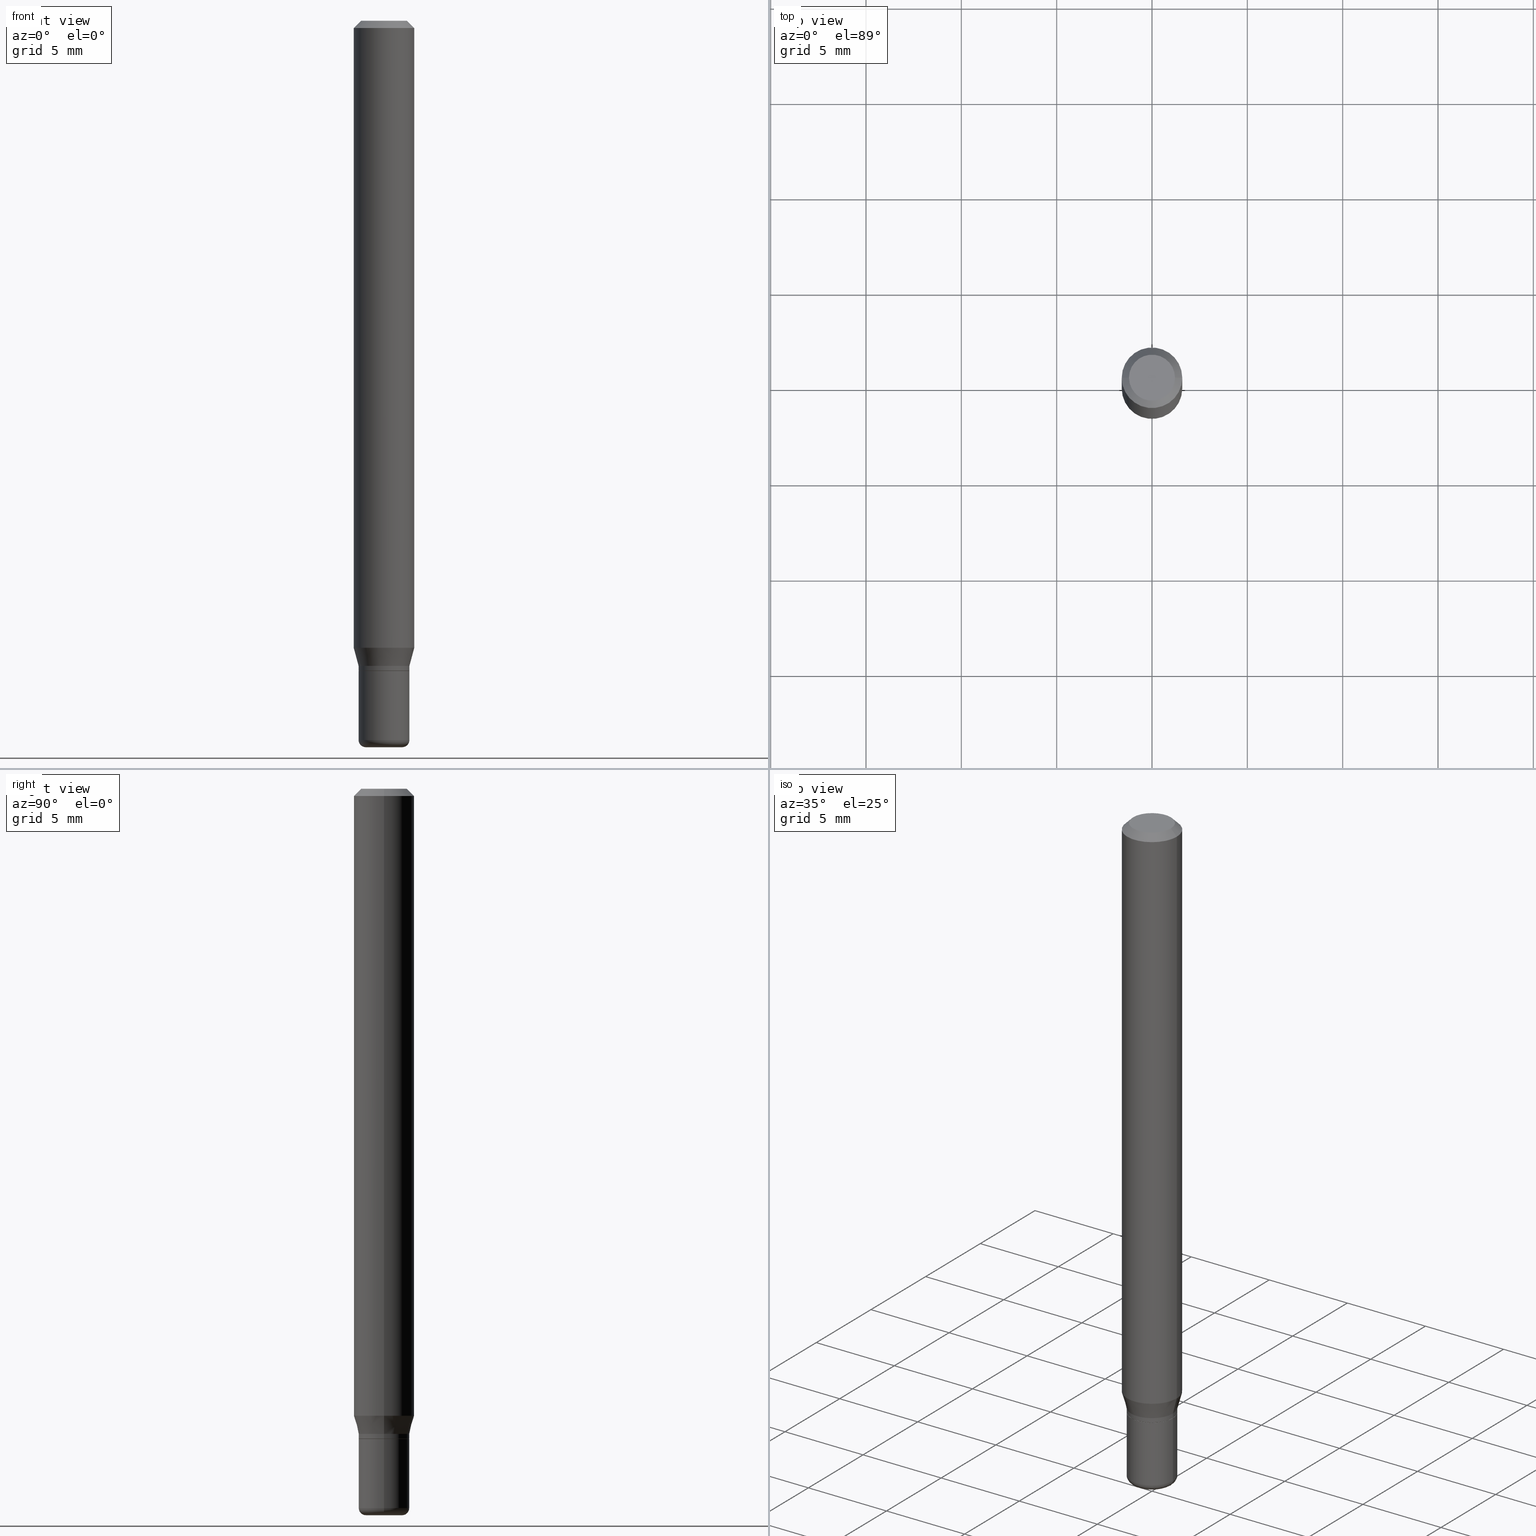
[diagram: canonical four-view strip — front | top / right | iso, engineering-drawing reading convention]
A machine part, canonical four-view strip (front | top / right | iso — engineering-drawing reading convention). The complete STEP part file that produces these views, byte-faithful:
ISO-10303-21;
HEADER;
FILE_DESCRIPTION (( 'STEP AP203' ),
    '1' );
FILE_NAME ('08746.STEP',
    '2024-02-29T20:46:26',
    ( '' ),
    ( '' ),
    'SwSTEP 2.0',
    'SolidWorks 2023',
    '' );
FILE_SCHEMA (( 'CONFIG_CONTROL_DESIGN' ));
ENDSEC;

DATA;
#1 = DIRECTION ( 'NONE',  ( -2.445468806185136597E-29, 3.491481338843145583E-15, 1.000000000000000000 ) ) ;
#2 = DIMENSIONAL_EXPONENTS ( 1.000000000000000000, 0.000000000000000000, 0.000000000000000000, 0.000000000000000000, 0.000000000000000000, 0.000000000000000000, 0.000000000000000000 ) ;
#3 = DIRECTION ( 'NONE',  ( -2.445468806185136877E-29, 3.491481338843145188E-15, 1.000000000000000000 ) ) ;
#4 = EDGE_CURVE ( 'NONE', #268, #75, #420, .T. ) ;
#5 = AXIS2_PLACEMENT_3D ( 'NONE', #154, #232, #308 ) ;
#6 = CARTESIAN_POINT ( 'NONE',  ( 0.06250000000000000000, -4.888073874380378612E-16, -0.01499999999999970281 ) ) ;
#7 = CIRCLE ( 'NONE', #45, 0.05249999999999997724 ) ;
#8 = DIRECTION ( 'NONE',  ( -2.445468806185136597E-29, 3.491481338843145583E-15, 1.000000000000000000 ) ) ;
#9 = CARTESIAN_POINT ( 'NONE',  ( 3.257364449838602072E-29, -4.650653143339070101E-15, -1.332000000000000073 ) ) ;
#10 = EDGE_CURVE ( 'NONE', #423, #398, #405, .T. ) ;
#11 = CARTESIAN_POINT ( 'NONE',  ( 0.05249999999999999806, -5.053919237975452413E-15, -1.342500000000000249 ) ) ;
#12 = VECTOR ( 'NONE', #3, 39.37007874015748143 ) ;
#13 = PERSON_AND_ORGANIZATION ( #141, #319 ) ;
#14 = LINE ( 'NONE', #246, #409 ) ;
#15 = DATE_AND_TIME ( #374, #93 ) ;
#16 = ORIENTED_EDGE ( 'NONE', *, *, #133, .T. ) ;
#17 = ORIENTED_EDGE ( 'NONE', *, *, #307, .F. ) ;
#18 = FACE_OUTER_BOUND ( 'NONE', #338, .T. ) ;
#19 = AXIS2_PLACEMENT_3D ( 'NONE', #292, #216, #211 ) ;
#20 = FACE_OUTER_BOUND ( 'NONE', #123, .T. ) ;
#21 = PLANE ( 'NONE',  #363 ) ;
#22 = EDGE_CURVE ( 'NONE', #223, #476, #80, .T. ) ;
#23 = CARTESIAN_POINT ( 'NONE',  ( -0.05249999999999999806, 3.730349362740525838E-16, -2.582440922383825311E-30 ) ) ;
#24 = ORIENTED_EDGE ( 'NONE', *, *, #266, .F. ) ;
#25 = CARTESIAN_POINT ( 'NONE',  ( 0.05249999999999997724, -5.551455328760600652E-15, -1.485000000000000098 ) ) ;
#26 = AXIS2_PLACEMENT_3D ( 'NONE', #53, #345, #506 ) ;
#27 = VERTEX_POINT ( 'NONE', #318 ) ;
#28 = DIRECTION ( 'NONE',  ( 1.000000000000000000, -6.982962677686269866E-15, 0.000000000000000000 ) ) ;
#29 = ORIENTED_EDGE ( 'NONE', *, *, #85, .T. ) ;
#30 = CARTESIAN_POINT ( 'NONE',  ( -0.05249999999999999806, -4.563046806515444838E-15, -1.342500000000000249 ) ) ;
#31 = EDGE_LOOP ( 'NONE', ( #503, #191 ) ) ;
#32 = DIRECTION ( 'NONE',  ( -2.445468806185136597E-29, 3.491481338843145583E-15, 1.000000000000000000 ) ) ;
#33 = CONICAL_SURFACE ( 'NONE', #452, 0.05199999999999998374, 0.7853981633972775267 ) ;
#34 = APPROVAL_PERSON_ORGANIZATION ( #220, #161, #496 ) ;
#35 = ORIENTED_EDGE ( 'NONE', *, *, #41, .F. ) ;
#36 =( GEOMETRIC_REPRESENTATION_CONTEXT ( 3 ) GLOBAL_UNCERTAINTY_ASSIGNED_CONTEXT ( ( #208 ) ) GLOBAL_UNIT_ASSIGNED_CONTEXT ( ( #260, #135, #128 ) ) REPRESENTATION_CONTEXT ( 'NONE', 'WORKASPACE' ) );
#37 = EDGE_CURVE ( 'NONE', #62, #27, #167, .T. ) ;
#38 = DIRECTION ( 'NONE',  ( -2.445468806185136877E-29, 3.491481338843145188E-15, 1.000000000000000000 ) ) ;
#39 = CARTESIAN_POINT ( 'NONE',  ( 3.631521177184928138E-29, -5.184849788182071492E-15, -1.485000000000000098 ) ) ;
#40 = LINE ( 'NONE', #361, #12 ) ;
#41 = EDGE_CURVE ( 'NONE', #27, #62, #276, .T. ) ;
#42 = DIRECTION ( 'NONE',  ( -2.445468806185136877E-29, 3.491481338843145188E-15, 1.000000000000000000 ) ) ;
#43 = DIRECTION ( 'NONE',  ( -2.445468806185136597E-29, 3.491481338843145583E-15, 1.000000000000000000 ) ) ;
#44 = DIRECTION ( 'NONE',  ( 1.000000000000000000, -6.982962677686260400E-15, 0.000000000000000000 ) ) ;
#45 = AXIS2_PLACEMENT_3D ( 'NONE', #39, #48, #242 ) ;
#46 = EDGE_CURVE ( 'NONE', #109, #423, #445, .T. ) ;
#47 = ORIENTED_EDGE ( 'NONE', *, *, #282, .T. ) ;
#48 = DIRECTION ( 'NONE',  ( -2.445468806185136597E-29, 3.491481338843145583E-15, 1.000000000000000000 ) ) ;
#49 = DIRECTION ( 'NONE',  ( -2.445468806185136597E-29, 3.491481338843145583E-15, 1.000000000000000000 ) ) ;
#50 = DESIGN_CONTEXT ( 'detailed design', #438, 'design' ) ;
#51 = DIRECTION ( 'NONE',  ( 1.000000000000000000, -6.982962677686266711E-15, 4.876176775795935793E-29 ) ) ;
#52 = AXIS2_PLACEMENT_3D ( 'NONE', #368, #367, #244 ) ;
#53 = CARTESIAN_POINT ( 'NONE',  ( 0.000000000000000000, 0.000000000000000000, 0.000000000000000000 ) ) ;
#54 = DIRECTION ( 'NONE',  ( 2.438088387897960049E-29, -3.491481338843145188E-15, -1.000000000000000000 ) ) ;
#55 = DIRECTION ( 'NONE',  ( -0.7071067811865479058, 2.468850131082261005E-15, -0.7071067811865471286 ) ) ;
#56 = ADVANCED_FACE ( 'NONE', ( #442 ), #113, .T. ) ;
#57 = ORIENTED_EDGE ( 'NONE', *, *, #317, .F. ) ;
#58 = AXIS2_PLACEMENT_3D ( 'NONE', #226, #73, #424 ) ;
#59 = CC_DESIGN_SECURITY_CLASSIFICATION ( #144, ( #112 ) ) ;
#60 = CLOSED_SHELL ( 'NONE', ( #467, #376, #251, #474, #417, #192, #188, #287, #280, #434, #462, #326 ) ) ;
#61 = DIRECTION ( 'NONE',  ( -2.445468806185136597E-29, 3.491481338843145583E-15, 1.000000000000000000 ) ) ;
#62 = VERTEX_POINT ( 'NONE', #235 ) ;
#63 = DIRECTION ( 'NONE',  ( -1.000000000000000000, 7.105427357600997914E-15, 0.000000000000000000 ) ) ;
#64 = ORIENTED_EDGE ( 'NONE', *, *, #130, .F. ) ;
#65 = FACE_OUTER_BOUND ( 'NONE', #151, .T. ) ;
#66 = APPLICATION_PROTOCOL_DEFINITION ( 'international standard', 'config_control_design', 1994, #438 ) ;
#67 = ORIENTED_EDGE ( 'NONE', *, *, #365, .T. ) ;
#68 = CARTESIAN_POINT ( 'NONE',  ( 0.05199999999999998374, -5.050427756636608617E-15, -1.342500000000000249 ) ) ;
#69 = AXIS2_PLACEMENT_3D ( 'NONE', #177, #501, #140 ) ;
#70 = EDGE_CURVE ( 'NONE', #402, #106, #7, .T. ) ;
#71 = PERSON_AND_ORGANIZATION ( #141, #319 ) ;
#72 = VERTEX_POINT ( 'NONE', #11 ) ;
#73 = DIRECTION ( 'NONE',  ( -2.445468806185136597E-29, 3.491481338843145583E-15, 1.000000000000000000 ) ) ;
#74 = COORDINATED_UNIVERSAL_TIME_OFFSET ( 5, 0, .BEHIND. ) ;
#75 = VERTEX_POINT ( 'NONE', #6 ) ;
#76 = CARTESIAN_POINT ( 'NONE',  ( -0.05199999999999998374, -4.317831474801671617E-15, -1.342500000000000249 ) ) ;
#77 = ORIENTED_EDGE ( 'NONE', *, *, #394, .F. ) ;
#78 = FACE_OUTER_BOUND ( 'NONE', #451, .T. ) ;
#79 = CIRCLE ( 'NONE', #256, 0.05249999999999999806 ) ;
#80 = CIRCLE ( 'NONE', #472, 0.05199999999999998374 ) ;
#81 = ORIENTED_EDGE ( 'NONE', *, *, #184, .T. ) ;
#82 = PRODUCT_RELATED_PRODUCT_CATEGORY ( 'detail', '', ( #187 ) ) ;
#83 = VERTEX_POINT ( 'NONE', #162 ) ;
#84 = CARTESIAN_POINT ( 'NONE',  ( 3.631521177184928138E-29, -5.184849788182071492E-15, -1.485000000000000098 ) ) ;
#85 = EDGE_CURVE ( 'NONE', #62, #75, #125, .T. ) ;
#86 = AXIS2_PLACEMENT_3D ( 'NONE', #136, #418, #500 ) ;
#87 = ORIENTED_EDGE ( 'NONE', *, *, #70, .F. ) ;
#88 = AXIS2_PLACEMENT_3D ( 'NONE', #255, #61, #453 ) ;
#89 = ORIENTED_EDGE ( 'NONE', *, *, #4, .F. ) ;
#90 = PERSON_AND_ORGANIZATION ( #141, #319 ) ;
#91 = DIRECTION ( 'NONE',  ( 2.445468806185136597E-29, -3.491481338843145583E-15, -1.000000000000000000 ) ) ;
#92 = DIRECTION ( 'NONE',  ( -0.2588190451025213501, 5.211531920934551042E-15, 0.9659258262890682012 ) ) ;
#93 = LOCAL_TIME ( 15, 46, 26.00000000000000000, #168 ) ;
#94 = CALENDAR_DATE ( 2024, 29, 2 ) ;
#95 = CC_DESIGN_PERSON_AND_ORGANIZATION_ASSIGNMENT ( #267, #475, ( #112 ) ) ;
#96 = CARTESIAN_POINT ( 'NONE',  ( -0.06250000000000000000, -1.842271543109589479E-15, -0.01499999999999970281 ) ) ;
#97 = EDGE_CURVE ( 'NONE', #398, #83, #364, .T. ) ;
#98 = DIRECTION ( 'NONE',  ( -2.445468806185136597E-29, 3.491481338843145583E-15, 1.000000000000000000 ) ) ;
#99 = ORIENTED_EDGE ( 'NONE', *, *, #46, .F. ) ;
#100 = CC_DESIGN_PERSON_AND_ORGANIZATION_ASSIGNMENT ( #90, #245, ( #357 ) ) ;
#101 = LINE ( 'NONE', #213, #334 ) ;
#102 = ORIENTED_EDGE ( 'NONE', *, *, #317, .T. ) ;
#103 = AXIS2_PLACEMENT_3D ( 'NONE', #272, #228, #117 ) ;
#104 = AXIS2_PLACEMENT_3D ( 'NONE', #454, #98, #253 ) ;
#105 = APPROVAL_ROLE ( '' ) ;
#106 = VERTEX_POINT ( 'NONE', #443 ) ;
#107 = CARTESIAN_POINT ( 'NONE',  ( 3.283041872303546419E-29, -4.687313697396923253E-15, -1.342500000000000249 ) ) ;
#108 = CARTESIAN_POINT ( 'NONE',  ( 3.283041872303546419E-29, -4.687313697396923253E-15, -1.342500000000000249 ) ) ;
#109 = VERTEX_POINT ( 'NONE', #411 ) ;
#110 = ORIENTED_EDGE ( 'NONE', *, *, #440, .T. ) ;
#111 = CARTESIAN_POINT ( 'NONE',  ( 0.000000000000000000, 0.000000000000000000, 0.000000000000000000 ) ) ;
#112 = PRODUCT_DEFINITION_FORMATION_WITH_SPECIFIED_SOURCE ( 'ANY', '', #187, .NOT_KNOWN. ) ;
#113 = TOROIDAL_SURFACE ( 'NONE', #121, 0.03749999999999999167, 0.01499999999999998557 ) ;
#114 = ORIENTED_EDGE ( 'NONE', *, *, #502, .F. ) ;
#115 = DIRECTION ( 'NONE',  ( 1.000000000000000000, -6.982962677686260400E-15, 0.000000000000000000 ) ) ;
#116 = ORIENTED_EDGE ( 'NONE', *, *, #174, .F. ) ;
#117 = DIRECTION ( 'NONE',  ( 1.000000000000000000, -6.982962677686266711E-15, 0.000000000000000000 ) ) ;
#118 = APPROVAL_DATE_TIME ( #146, #161 ) ;
#119 = DIRECTION ( 'NONE',  ( 1.000000000000000000, -6.982962677686267499E-15, 4.876176775795935793E-29 ) ) ;
#120 = ORIENTED_EDGE ( 'NONE', *, *, #201, .F. ) ;
#121 = AXIS2_PLACEMENT_3D ( 'NONE', #84, #362, #437 ) ;
#122 = CARTESIAN_POINT ( 'NONE',  ( 3.166098311508524908E-29, -4.520349285836658294E-15, -1.294679491924311421 ) ) ;
#123 = EDGE_LOOP ( 'NONE', ( #77, #158, #395, #89 ) ) ;
#124 = CC_DESIGN_DATE_AND_TIME_ASSIGNMENT ( #277, #404, ( #144 ) ) ;
#125 = LINE ( 'NONE', #360, #515 ) ;
#126 = AXIS2_PLACEMENT_3D ( 'NONE', #219, #54, #173 ) ;
#127 = ORIENTED_EDGE ( 'NONE', *, *, #510, .F. ) ;
#128 =( NAMED_UNIT ( * ) SI_UNIT ( $, .STERADIAN. ) SOLID_ANGLE_UNIT ( ) );
#129 = VECTOR ( 'NONE', #290, 39.37007874015748143 ) ;
#130 = EDGE_CURVE ( 'NONE', #423, #109, #457, .T. ) ;
#131 = DIRECTION ( 'NONE',  ( 1.000000000000000000, -6.982962677686260400E-15, 0.000000000000000000 ) ) ;
#132 = COORDINATED_UNIVERSAL_TIME_OFFSET ( 5, 0, .BEHIND. ) ;
#133 = EDGE_CURVE ( 'NONE', #109, #83, #488, .T. ) ;
#134 = CARTESIAN_POINT ( 'NONE',  ( 0.05249999999999999806, -3.666055405785289629E-16, 2.559992807292866011E-30 ) ) ;
#135 =( NAMED_UNIT ( * ) PLANE_ANGLE_UNIT ( ) SI_UNIT ( $, .RADIAN. ) );
#136 = CARTESIAN_POINT ( 'NONE',  ( 0.03749999999999999167, -5.446710888595306494E-15, -1.485000000000000098 ) ) ;
#137 = LOCAL_TIME ( 15, 46, 26.00000000000000000, #74 ) ;
#138 = CARTESIAN_POINT ( 'NONE',  ( 3.668203209277632395E-31, -5.237222008264614861E-17, -0.01499999999999970281 ) ) ;
#139 = APPROVAL ( #270, 'UNSPECIFIED' ) ;
#140 = DIRECTION ( 'NONE',  ( -1.000000000000000000, 6.982962677686266711E-15, 0.000000000000000000 ) ) ;
#141 = PERSON ( 'UNSPECIFIED', 'UNSPECIFIED', 'UNSPECIFIED', ('UNSPECIFIED'), ('UNSPECIFIED'), ('UNSPECIFIED') ) ;
#142 = PERSON_AND_ORGANIZATION_ROLE ( 'design_owner' ) ;
#143 = AXIS2_PLACEMENT_3D ( 'NONE', #313, #390, #28 ) ;
#144 = SECURITY_CLASSIFICATION ( '', '', #517 ) ;
#145 = DIRECTION ( 'NONE',  ( 1.000000000000000000, -6.982962677686265922E-15, 4.876176775795935793E-29 ) ) ;
#146 = DATE_AND_TIME ( #340, #470 ) ;
#147 = ORIENTED_EDGE ( 'NONE', *, *, #487, .T. ) ;
#148 = DIRECTION ( 'NONE',  ( 1.000000000000000000, -6.982962677686268288E-15, 0.000000000000000000 ) ) ;
#149 = ORIENTED_EDGE ( 'NONE', *, *, #297, .F. ) ;
#150 = DIRECTION ( 'NONE',  ( -2.438088387897960049E-29, 3.491481338843145188E-15, 1.000000000000000000 ) ) ;
#151 = EDGE_LOOP ( 'NONE', ( #480, #301, #435, #264 ) ) ;
#152 = AXIS2_PLACEMENT_3D ( 'NONE', #481, #283, #410 ) ;
#153 = ADVANCED_FACE ( 'NONE', ( #333 ), #499, .T. ) ;
#154 = CARTESIAN_POINT ( 'NONE',  ( 3.582686580359766038E-29, -5.359686688179453325E-15, -1.500000000000000222 ) ) ;
#155 = ORIENTED_EDGE ( 'NONE', *, *, #37, .F. ) ;
#156 = CARTESIAN_POINT ( 'NONE',  ( 0.06250000000000000000, -4.956784453192050752E-15, -1.294679491924311421 ) ) ;
#157 = CALENDAR_DATE ( 2024, 29, 2 ) ;
#158 = ORIENTED_EDGE ( 'NONE', *, *, #307, .T. ) ;
#159 = ORIENTED_EDGE ( 'NONE', *, *, #10, .F. ) ;
#160 = CIRCLE ( 'NONE', #294, 0.03749999999999999861 ) ;
#161 = APPROVAL ( #332, 'UNSPECIFIED' ) ;
#162 = CARTESIAN_POINT ( 'NONE',  ( -0.06250000000000000000, -4.076260075986595677E-15, -1.294679491924311421 ) ) ;
#163 = CARTESIAN_POINT ( 'NONE',  ( 3.166098311508524908E-29, -4.520349285836658294E-15, -1.294679491924311421 ) ) ;
#164 = DIRECTION ( 'NONE',  ( -2.445468806185136597E-29, 3.491481338843145583E-15, 1.000000000000000000 ) ) ;
#165 = AXIS2_PLACEMENT_3D ( 'NONE', #122, #441, #199 ) ;
#166 = DIRECTION ( 'NONE',  ( 1.000000000000000000, -6.982962677686271444E-15, 4.883557194083114583E-29 ) ) ;
#167 = CIRCLE ( 'NONE', #225, 0.04750000000000000749 ) ;
#168 = COORDINATED_UNIVERSAL_TIME_OFFSET ( 5, 0, .BEHIND. ) ;
#169 = APPROVAL ( #456, 'UNSPECIFIED' ) ;
#170 = DATE_TIME_ROLE ( 'creation_date' ) ;
#171 = DIRECTION ( 'NONE',  ( -1.000000000000000000, 6.982962677686266711E-15, 0.000000000000000000 ) ) ;
#172 = AXIS2_PLACEMENT_3D ( 'NONE', #422, #250, #63 ) ;
#173 = DIRECTION ( 'NONE',  ( -1.000000000000000000, 6.982962677686265922E-15, -4.876176775795935793E-29 ) ) ;
#174 = EDGE_CURVE ( 'NONE', #398, #75, #14, .T. ) ;
#175 = ORIENTED_EDGE ( 'NONE', *, *, #440, .F. ) ;
#176 = AXIS2_PLACEMENT_3D ( 'NONE', #455, #377, #51 ) ;
#177 = CARTESIAN_POINT ( 'NONE',  ( 3.668203209277632395E-31, -5.237222008264614861E-17, -0.01499999999999970281 ) ) ;
#178 = LINE ( 'NONE', #23, #240 ) ;
#179 = COORDINATED_UNIVERSAL_TIME_OFFSET ( 5, 0, .BEHIND. ) ;
#180 = ORIENTED_EDGE ( 'NONE', *, *, #41, .T. ) ;
#181 = AXIS2_PLACEMENT_3D ( 'NONE', #138, #91, #171 ) ;
#182 = AXIS2_PLACEMENT_3D ( 'NONE', #9, #164, #327 ) ;
#183 = DIRECTION ( 'NONE',  ( -2.445468806185136597E-29, 3.491481338843145583E-15, 1.000000000000000000 ) ) ;
#184 = EDGE_CURVE ( 'NONE', #27, #268, #101, .T. ) ;
#185 = ORIENTED_EDGE ( 'NONE', *, *, #365, .F. ) ;
#186 = FACE_OUTER_BOUND ( 'NONE', #466, .T. ) ;
#187 = PRODUCT ( '08746', '08746', '', ( #495 ) ) ;
#188 = ADVANCED_FACE ( 'NONE', ( #20 ), #295, .T. ) ;
#189 = ORIENTED_EDGE ( 'NONE', *, *, #243, .T. ) ;
#190 = FACE_OUTER_BOUND ( 'NONE', #353, .T. ) ;
#191 = ORIENTED_EDGE ( 'NONE', *, *, #201, .T. ) ;
#192 = ADVANCED_FACE ( 'NONE', ( #373 ), #310, .T. ) ;
#193 = CIRCLE ( 'NONE', #143, 0.05249999999999998418 ) ;
#194 = DIRECTION ( 'NONE',  ( -2.445468806185136597E-29, 3.491481338843145583E-15, 1.000000000000000000 ) ) ;
#195 = AXIS2_PLACEMENT_3D ( 'NONE', #259, #430, #234 ) ;
#196 = EDGE_LOOP ( 'NONE', ( #471, #384, #408, #17 ) ) ;
#197 = MANIFOLD_SOLID_BREP ( 'Body-Move/Copy2[1]', #212 ) ;
#198 = PERSON_AND_ORGANIZATION_ROLE ( 'classification_officer' ) ;
#199 = DIRECTION ( 'NONE',  ( 1.000000000000000000, -6.982962677686262766E-15, 0.000000000000000000 ) ) ;
#200 = DIRECTION ( 'NONE',  ( 0.2588190451025213501, 1.565188264969621968E-15, 0.9659258262890682012 ) ) ;
#201 = EDGE_CURVE ( 'NONE', #463, #72, #491, .T. ) ;
#202 = CYLINDRICAL_SURFACE ( 'NONE', #285, 0.05249999999999999806 ) ;
#203 = DIRECTION ( 'NONE',  ( 1.000000000000000000, -6.982962677686267499E-15, 0.000000000000000000 ) ) ;
#204 = CIRCLE ( 'NONE', #172, 0.01499999999999998557 ) ;
#205 = FACE_OUTER_BOUND ( 'NONE', #227, .T. ) ;
#206 = ORIENTED_EDGE ( 'NONE', *, *, #382, .T. ) ;
#207 = CARTESIAN_POINT ( 'NONE',  ( 3.257364449838602072E-29, -4.650653143339070101E-15, -1.332000000000000073 ) ) ;
#208 = UNCERTAINTY_MEASURE_WITH_UNIT (LENGTH_MEASURE( 1.000000000000000082E-05 ), #260, 'distance_accuracy_value', 'NONE');
#209 = CARTESIAN_POINT ( 'NONE',  ( 3.283041872303546419E-29, -4.687313697396923253E-15, -1.342500000000000249 ) ) ;
#210 = DIRECTION ( 'NONE',  ( 1.000000000000000000, -6.982962677686268288E-15, 0.000000000000000000 ) ) ;
#211 = DIRECTION ( 'NONE',  ( 1.000000000000000000, -6.982962677686268288E-15, 0.000000000000000000 ) ) ;
#212 = CLOSED_SHELL ( 'NONE', ( #56, #406, #493, #314, #153, #337 ) ) ;
#213 = CARTESIAN_POINT ( 'NONE',  ( -0.06250000000000000000, 3.840629472727455270E-16, -0.01499999999999970281 ) ) ;
#214 = VERTEX_POINT ( 'NONE', #330 ) ;
#215 = CC_DESIGN_PERSON_AND_ORGANIZATION_ASSIGNMENT ( #349, #198, ( #144 ) ) ;
#216 = DIRECTION ( 'NONE',  ( -2.445468806185136597E-29, 3.491481338843145583E-15, 1.000000000000000000 ) ) ;
#217 = EDGE_LOOP ( 'NONE', ( #127, #306, #189, #99 ) ) ;
#218 = AXIS2_PLACEMENT_3D ( 'NONE', #359, #324, #119 ) ;
#219 = CARTESIAN_POINT ( 'NONE',  ( 3.316907271900976589E-16, 0.04750000000000000749, -2.925296391183627249E-17 ) ) ;
#220 = PERSON_AND_ORGANIZATION ( #141, #319 ) ;
#221 = VERTEX_POINT ( 'NONE', #497 ) ;
#222 = CARTESIAN_POINT ( 'NONE',  ( 3.283041872303546419E-29, -4.687313697396923253E-15, -1.342500000000000249 ) ) ;
#223 = VERTEX_POINT ( 'NONE', #494 ) ;
#224 = CIRCLE ( 'NONE', #104, 0.05249999999999998418 ) ;
#225 = AXIS2_PLACEMENT_3D ( 'NONE', #486, #279, #366 ) ;
#226 = CARTESIAN_POINT ( 'NONE',  ( 3.257364449838602072E-29, -4.650653143339070101E-15, -1.332000000000000073 ) ) ;
#227 = EDGE_LOOP ( 'NONE', ( #233, #102, #428, #120 ) ) ;
#228 = DIRECTION ( 'NONE',  ( -2.445468806185136597E-29, 3.491481338843145583E-15, 1.000000000000000000 ) ) ;
#229 = DATE_AND_TIME ( #157, #137 ) ;
#230 = CC_DESIGN_PERSON_AND_ORGANIZATION_ASSIGNMENT ( #71, #478, ( #112 ) ) ;
#231 = ORIENTED_EDGE ( 'NONE', *, *, #510, .T. ) ;
#232 = DIRECTION ( 'NONE',  ( -2.438088387897960049E-29, 3.491481338843145188E-15, 1.000000000000000000 ) ) ;
#233 = ORIENTED_EDGE ( 'NONE', *, *, #487, .F. ) ;
#234 = DIRECTION ( 'NONE',  ( 1.000000000000000000, -6.982962677686267499E-15, 4.876176775795935793E-29 ) ) ;
#235 = CARTESIAN_POINT ( 'NONE',  ( 0.04750000000000000749, -4.035134999187568762E-16, 2.731847993664288856E-16 ) ) ;
#236 = DIRECTION ( 'NONE',  ( 1.000000000000000000, -6.982962677686266711E-15, 4.876176775795935793E-29 ) ) ;
#237 = ORIENTED_EDGE ( 'NONE', *, *, #282, .F. ) ;
#238 = CARTESIAN_POINT ( 'NONE',  ( 0.000000000000000000, 0.000000000000000000, 0.000000000000000000 ) ) ;
#239 = ORIENTED_EDGE ( 'NONE', *, *, #37, .T. ) ;
#240 = VECTOR ( 'NONE', #369, 39.37007874015748143 ) ;
#241 = EDGE_CURVE ( 'NONE', #476, #223, #381, .T. ) ;
#242 = DIRECTION ( 'NONE',  ( 1.000000000000000000, -6.982962677686270655E-15, 0.000000000000000000 ) ) ;
#243 = EDGE_CURVE ( 'NONE', #247, #423, #249, .T. ) ;
#244 = DIRECTION ( 'NONE',  ( 1.000000000000000000, -6.982962677686266711E-15, 4.852736867747365086E-29 ) ) ;
#245 = PERSON_AND_ORGANIZATION_ROLE ( 'creator' ) ;
#246 = CARTESIAN_POINT ( 'NONE',  ( 0.06250000000000000000, -4.364351673553916694E-16, 3.047610484872459871E-30 ) ) ;
#247 = VERTEX_POINT ( 'NONE', #336 ) ;
#248 = AXIS2_PLACEMENT_3D ( 'NONE', #222, #150, #145 ) ;
#249 = LINE ( 'NONE', #134, #129 ) ;
#250 = DIRECTION ( 'NONE',  ( 7.105427357601001859E-15, 1.000000000000000000, -3.491481338843145583E-15 ) ) ;
#251 = ADVANCED_FACE ( 'NONE', ( #18 ), #300, .T. ) ;
#252 = CARTESIAN_POINT ( 'NONE',  ( -0.03749999999999999861, -4.891291667131351044E-15, -1.500000000000000222 ) ) ;
#253 = DIRECTION ( 'NONE',  ( 1.000000000000000000, -6.982962677686269866E-15, 0.000000000000000000 ) ) ;
#254 = ADVANCED_BREP_SHAPE_REPRESENTATION ( '08746', ( #197, #372, #26 ), #36 ) ;
#255 = CARTESIAN_POINT ( 'NONE',  ( 3.257364449838602072E-29, -4.650653143339070101E-15, -1.332000000000000073 ) ) ;
#256 = AXIS2_PLACEMENT_3D ( 'NONE', #108, #49, #210 ) ;
#257 = APPROVAL_DATE_TIME ( #15, #169 ) ;
#258 = ORIENTED_EDGE ( 'NONE', *, *, #22, .T. ) ;
#259 = CARTESIAN_POINT ( 'NONE',  ( 0.000000000000000000, 0.000000000000000000, 0.000000000000000000 ) ) ;
#260 =( CONVERSION_BASED_UNIT ( 'INCH', #303 ) LENGTH_UNIT ( ) NAMED_UNIT ( #2 ) );
#261 = ORIENTED_EDGE ( 'NONE', *, *, #379, .F. ) ;
#262 = LINE ( 'NONE', #265, #400 ) ;
#263 = APPROVAL_ROLE ( '' ) ;
#264 = ORIENTED_EDGE ( 'NONE', *, *, #426, .F. ) ;
#265 = CARTESIAN_POINT ( 'NONE',  ( -0.06250000000000000000, 4.440892098500626162E-16, -3.074334431409316114E-30 ) ) ;
#266 = EDGE_CURVE ( 'NONE', #221, #402, #329, .T. ) ;
#267 = PERSON_AND_ORGANIZATION ( #141, #319 ) ;
#268 = VERTEX_POINT ( 'NONE', #96 ) ;
#269 = FACE_OUTER_BOUND ( 'NONE', #514, .T. ) ;
#270 = APPROVAL_STATUS ( 'not_yet_approved' ) ;
#271 = VERTEX_POINT ( 'NONE', #252 ) ;
#272 = CARTESIAN_POINT ( 'NONE',  ( 3.668203209277632395E-31, -5.237222008264614861E-17, -0.01499999999999970281 ) ) ;
#273 = SHAPE_DEFINITION_REPRESENTATION ( #358, #254 ) ;
#274 = DIRECTION ( 'NONE',  ( 1.000000000000000000, -6.982962677686266711E-15, 0.000000000000000000 ) ) ;
#275 = CC_DESIGN_APPROVAL ( #161, ( #112 ) ) ;
#276 = CIRCLE ( 'NONE', #52, 0.04750000000000000749 ) ;
#277 = DATE_AND_TIME ( #431, #320 ) ;
#278 = FACE_OUTER_BOUND ( 'NONE', #217, .T. ) ;
#279 = DIRECTION ( 'NONE',  ( -2.445468806185136597E-29, 3.491481338843145583E-15, 1.000000000000000000 ) ) ;
#280 = ADVANCED_FACE ( 'NONE', ( #416 ), #448, .F. ) ;
#281 = CARTESIAN_POINT ( 'NONE',  ( 3.668203209277632395E-31, -5.237222008264614861E-17, -0.01499999999999970281 ) ) ;
#282 = EDGE_CURVE ( 'NONE', #247, #214, #224, .T. ) ;
#283 = DIRECTION ( 'NONE',  ( -2.445468806185136597E-29, 3.491481338843145583E-15, 1.000000000000000000 ) ) ;
#284 = DIRECTION ( 'NONE',  ( 1.000000000000000000, -6.982962677686262766E-15, 0.000000000000000000 ) ) ;
#285 = AXIS2_PLACEMENT_3D ( 'NONE', #111, #355, #436 ) ;
#286 = APPROVAL_PERSON_ORGANIZATION ( #465, #139, #263 ) ;
#287 = ADVANCED_FACE ( 'NONE', ( #380 ), #341, .T. ) ;
#288 = AXIS2_PLACEMENT_3D ( 'NONE', #331, #450, #131 ) ;
#289 = CARTESIAN_POINT ( 'NONE',  ( -0.05250000000000000500, -4.277618207065018355E-15, -1.332000000000000073 ) ) ;
#290 = DIRECTION ( 'NONE',  ( -2.445468806185136877E-29, 3.491481338843145188E-15, 1.000000000000000000 ) ) ;
#291 = DATE_AND_TIME ( #94, #513 ) ;
#292 = CARTESIAN_POINT ( 'NONE',  ( 3.283041872303546419E-29, -4.687313697396923253E-15, -1.342500000000000249 ) ) ;
#293 = CARTESIAN_POINT ( 'NONE',  ( 3.666055405785617499E-16, 0.05249999999999530736, -1.342500000000000471 ) ) ;
#294 = AXIS2_PLACEMENT_3D ( 'NONE', #311, #194, #468 ) ;
#295 = CYLINDRICAL_SURFACE ( 'NONE', #176, 0.06250000000000000000 ) ;
#296 = DIRECTION ( 'NONE',  ( -2.445468806185136877E-29, 3.491481338843145188E-15, 1.000000000000000000 ) ) ;
#297 = EDGE_CURVE ( 'NONE', #402, #72, #479, .T. ) ;
#298 = CC_DESIGN_PERSON_AND_ORGANIZATION_ASSIGNMENT ( #13, #142, ( #187 ) ) ;
#299 = APPLICATION_PROTOCOL_DEFINITION ( 'international standard', 'config_control_design', 1994, #414 ) ;
#300 = CONICAL_SURFACE ( 'NONE', #181, 0.06250000000000000000, 0.7853981633974488341 ) ;
#301 = ORIENTED_EDGE ( 'NONE', *, *, #241, .T. ) ;
#302 = CARTESIAN_POINT ( 'NONE',  ( 0.05250000000000000500, -5.017258683917599261E-15, -1.332000000000000073 ) ) ;
#303 = LENGTH_MEASURE_WITH_UNIT ( LENGTH_MEASURE( 0.02539999999999999897 ), #388 );
#304 = ORIENTED_EDGE ( 'NONE', *, *, #458, .T. ) ;
#305 = DIRECTION ( 'NONE',  ( -2.445468806185136597E-29, 3.491481338843145583E-15, 1.000000000000000000 ) ) ;
#306 = ORIENTED_EDGE ( 'NONE', *, *, #426, .T. ) ;
#307 = EDGE_CURVE ( 'NONE', #83, #398, #512, .T. ) ;
#308 = DIRECTION ( 'NONE',  ( 1.000000000000000000, -6.982962677686265922E-15, 4.876176775795935793E-29 ) ) ;
#309 = EDGE_LOOP ( 'NONE', ( #258, #304, #237, #261 ) ) ;
#310 = CONICAL_SURFACE ( 'NONE', #88, 0.05250000000000000500, 0.2617993877991500740 ) ;
#311 = CARTESIAN_POINT ( 'NONE',  ( 3.668203209277704895E-29, -5.237222008264718177E-15, -1.500000000000000222 ) ) ;
#312 = ORIENTED_EDGE ( 'NONE', *, *, #243, .F. ) ;
#313 = CARTESIAN_POINT ( 'NONE',  ( 3.281819137900453057E-29, -4.685567956727500961E-15, -1.342000000000000082 ) ) ;
#314 = ADVANCED_FACE ( 'NONE', ( #205 ), #407, .T. ) ;
#315 = APPROVAL_DATE_TIME ( #229, #139 ) ;
#316 = ORIENTED_EDGE ( 'NONE', *, *, #22, .F. ) ;
#317 = EDGE_CURVE ( 'NONE', #106, #402, #413, .T. ) ;
#318 = CARTESIAN_POINT ( 'NONE',  ( -0.04750000000000000749, 3.578768372314221353E-16, 2.731847993664239060E-16 ) ) ;
#319 = ORGANIZATION ( 'UNSPECIFIED', 'UNSPECIFIED', '' ) ;
#320 = LOCAL_TIME ( 15, 46, 26.00000000000000000, #393 ) ;
#321 = CARTESIAN_POINT ( 'NONE',  ( 0.05249999999999998418, -3.666055405785289136E-16, 2.559992807292865661E-30 ) ) ;
#322 = DIRECTION ( 'NONE',  ( 0.7071067811865479058, -7.319954787623257623E-15, -0.7071067811865471286 ) ) ;
#323 = CYLINDRICAL_SURFACE ( 'NONE', #492, 0.06250000000000000000 ) ;
#324 = DIRECTION ( 'NONE',  ( -2.445468806185136597E-29, 3.491481338843145583E-15, 1.000000000000000000 ) ) ;
#325 = ORIENTED_EDGE ( 'NONE', *, *, #382, .F. ) ;
#326 = ADVANCED_FACE ( 'NONE', ( #278 ), #202, .T. ) ;
#327 = DIRECTION ( 'NONE',  ( 1.000000000000000000, -6.982962677686267499E-15, 0.000000000000000000 ) ) ;
#328 = CC_DESIGN_APPROVAL ( #169, ( #357 ) ) ;
#329 = CIRCLE ( 'NONE', #86, 0.01499999999999998557 ) ;
#330 = CARTESIAN_POINT ( 'NONE',  ( -0.05249999999999998418, -4.312533020453448426E-15, -1.342000000000000082 ) ) ;
#331 = CARTESIAN_POINT ( 'NONE',  ( 3.283041872303546419E-29, -4.687313697396923253E-15, -1.342500000000000249 ) ) ;
#332 = APPROVAL_STATUS ( 'not_yet_approved' ) ;
#333 = FACE_OUTER_BOUND ( 'NONE', #386, .T. ) ;
#334 = VECTOR ( 'NONE', #55, 39.37007874015748143 ) ;
#335 = EDGE_LOOP ( 'NONE', ( #518, #347, #175, #116 ) ) ;
#336 = CARTESIAN_POINT ( 'NONE',  ( 0.05249999999999998418, -5.052173497306030121E-15, -1.342000000000000082 ) ) ;
#337 = ADVANCED_FACE ( 'NONE', ( #78 ), #516, .F. ) ;
#338 = EDGE_LOOP ( 'NONE', ( #155, #29, #110, #375 ) ) ;
#339 = DIRECTION ( 'NONE',  ( -2.445468806185136597E-29, 3.491481338843145583E-15, 1.000000000000000000 ) ) ;
#340 = CALENDAR_DATE ( 2024, 29, 2 ) ;
#341 = CONICAL_SURFACE ( 'NONE', #69, 0.06250000000000000000, 0.7853981633974488341 ) ;
#342 = ORIENTED_EDGE ( 'NONE', *, *, #97, .F. ) ;
#343 = AXIS2_PLACEMENT_3D ( 'NONE', #207, #483, #203 ) ;
#344 = CYLINDRICAL_SURFACE ( 'NONE', #482, 0.05249999999999999806 ) ;
#345 = DIRECTION ( 'NONE',  ( 0.000000000000000000, 0.000000000000000000, 1.000000000000000000 ) ) ;
#346 = CC_DESIGN_DATE_AND_TIME_ASSIGNMENT ( #291, #170, ( #357 ) ) ;
#347 = ORIENTED_EDGE ( 'NONE', *, *, #394, .T. ) ;
#348 = FACE_OUTER_BOUND ( 'NONE', #309, .T. ) ;
#349 = PERSON_AND_ORGANIZATION ( #141, #319 ) ;
#350 = ORIENTED_EDGE ( 'NONE', *, *, #241, .F. ) ;
#351 = CARTESIAN_POINT ( 'NONE',  ( 0.000000000000000000, 0.000000000000000000, 0.000000000000000000 ) ) ;
#352 = AXIS2_PLACEMENT_3D ( 'NONE', #433, #32, #148 ) ;
#353 = EDGE_LOOP ( 'NONE', ( #47, #231, #64, #312 ) ) ;
#354 = AXIS2_PLACEMENT_3D ( 'NONE', #281, #1, #274 ) ;
#355 = DIRECTION ( 'NONE',  ( -2.445468806185136597E-29, 3.491481338843145583E-15, 1.000000000000000000 ) ) ;
#356 = EDGE_LOOP ( 'NONE', ( #206, #509, #87, #24 ) ) ;
#357 = PRODUCT_DEFINITION ( 'UNKNOWN', '', #112, #50 ) ;
#358 = PRODUCT_DEFINITION_SHAPE ( 'NONE', 'NONE',  #357 ) ;
#359 = CARTESIAN_POINT ( 'NONE',  ( 0.000000000000000000, 0.000000000000000000, 0.000000000000000000 ) ) ;
#360 = CARTESIAN_POINT ( 'NONE',  ( 0.06250000000000000000, -4.811533449433669144E-16, -0.01499999999999970281 ) ) ;
#361 = CARTESIAN_POINT ( 'NONE',  ( -0.05249999999999998418, 3.730349362740524852E-16, -2.582440922383824961E-30 ) ) ;
#362 = DIRECTION ( 'NONE',  ( -2.445468806185136597E-29, 3.491481338843145583E-15, 1.000000000000000000 ) ) ;
#363 = AXIS2_PLACEMENT_3D ( 'NONE', #293, #461, #385 ) ;
#364 = CIRCLE ( 'NONE', #415, 0.06250000000000000000 ) ;
#365 = EDGE_CURVE ( 'NONE', #271, #221, #370, .T. ) ;
#366 = DIRECTION ( 'NONE',  ( 1.000000000000000000, -6.982962677686266711E-15, 4.852736867747365086E-29 ) ) ;
#367 = DIRECTION ( 'NONE',  ( -2.445468806185136597E-29, 3.491481338843145583E-15, 1.000000000000000000 ) ) ;
#368 = CARTESIAN_POINT ( 'NONE',  ( -6.680649051745406845E-45, 9.538196290434862081E-31, 2.731847993664263218E-16 ) ) ;
#369 = DIRECTION ( 'NONE',  ( -2.445468806185136877E-29, 3.491481338843145188E-15, 1.000000000000000000 ) ) ;
#370 = CIRCLE ( 'NONE', #352, 0.03749999999999999861 ) ;
#371 = VECTOR ( 'NONE', #200, 39.37007874015747433 ) ;
#372 = MANIFOLD_SOLID_BREP ( 'Body-Move/Copy2[2]', #60 ) ;
#373 = FACE_OUTER_BOUND ( 'NONE', #196, .T. ) ;
#374 = CALENDAR_DATE ( 2024, 29, 2 ) ;
#375 = ORIENTED_EDGE ( 'NONE', *, *, #184, .F. ) ;
#376 = ADVANCED_FACE ( 'NONE', ( #348 ), #421, .T. ) ;
#377 = DIRECTION ( 'NONE',  ( -2.445468806185136597E-29, 3.491481338843145583E-15, 1.000000000000000000 ) ) ;
#378 = CARTESIAN_POINT ( 'NONE',  ( 3.631521177184928138E-29, -5.184849788182071492E-15, -1.485000000000000098 ) ) ;
#379 = EDGE_CURVE ( 'NONE', #223, #247, #464, .T. ) ;
#380 = FACE_OUTER_BOUND ( 'NONE', #389, .T. ) ;
#381 = CIRCLE ( 'NONE', #288, 0.05199999999999998374 ) ;
#382 = EDGE_CURVE ( 'NONE', #221, #271, #160, .T. ) ;
#383 = DIRECTION ( 'NONE',  ( -2.445468806185136597E-29, 3.491481338843145583E-15, 1.000000000000000000 ) ) ;
#384 = ORIENTED_EDGE ( 'NONE', *, *, #46, .T. ) ;
#385 = DIRECTION ( 'NONE',  ( -1.000000000000000000, 6.982962677686265922E-15, -4.876176775795935793E-29 ) ) ;
#386 = EDGE_LOOP ( 'NONE', ( #459, #67, #432, #57 ) ) ;
#387 = CYLINDRICAL_SURFACE ( 'NONE', #195, 0.05249999999999998418 ) ;
#388 =( LENGTH_UNIT ( ) NAMED_UNIT ( * ) SI_UNIT ( $, .METRE. ) );
#389 = EDGE_LOOP ( 'NONE', ( #425, #35, #81, #439 ) ) ;
#390 = DIRECTION ( 'NONE',  ( -2.445468806185136597E-29, 3.491481338843145583E-15, 1.000000000000000000 ) ) ;
#391 = ORIENTED_EDGE ( 'NONE', *, *, #130, .T. ) ;
#392 = DIRECTION ( 'NONE',  ( 1.000000000000000000, -6.982962677686260400E-15, 0.000000000000000000 ) ) ;
#393 = COORDINATED_UNIVERSAL_TIME_OFFSET ( 5, 0, .BEHIND. ) ;
#394 = EDGE_CURVE ( 'NONE', #83, #268, #262, .T. ) ;
#395 = ORIENTED_EDGE ( 'NONE', *, *, #174, .T. ) ;
#396 = DIRECTION ( 'NONE',  ( 0.7071067811864267805, -2.468850131080992517E-15, 0.7071067811866682540 ) ) ;
#397 = VECTOR ( 'NONE', #42, 39.37007874015748143 ) ;
#398 = VERTEX_POINT ( 'NONE', #156 ) ;
#399 = CC_DESIGN_APPROVAL ( #139, ( #144 ) ) ;
#400 = VECTOR ( 'NONE', #38, 39.37007874015748143 ) ;
#401 = FACE_OUTER_BOUND ( 'NONE', #507, .T. ) ;
#402 = VERTEX_POINT ( 'NONE', #25 ) ;
#403 = CARTESIAN_POINT ( 'NONE',  ( -0.05199999999999998374, -4.315182247627560416E-15, -1.342500000000000249 ) ) ;
#404 = DATE_TIME_ROLE ( 'classification_date' ) ;
#405 = LINE ( 'NONE', #412, #371 ) ;
#406 = ADVANCED_FACE ( 'NONE', ( #401 ), #387, .T. ) ;
#407 = CYLINDRICAL_SURFACE ( 'NONE', #218, 0.05249999999999998418 ) ;
#408 = ORIENTED_EDGE ( 'NONE', *, *, #10, .T. ) ;
#409 = VECTOR ( 'NONE', #296, 39.37007874015748143 ) ;
#410 = DIRECTION ( 'NONE',  ( 1.000000000000000000, -6.982962677686270655E-15, 0.000000000000000000 ) ) ;
#411 = CARTESIAN_POINT ( 'NONE',  ( -0.05250000000000000500, -4.176939141525806622E-15, -1.332000000000000073 ) ) ;
#412 = CARTESIAN_POINT ( 'NONE',  ( 0.05250000000000000500, -5.017258683917599261E-15, -1.332000000000000073 ) ) ;
#413 = CIRCLE ( 'NONE', #152, 0.05249999999999997724 ) ;
#414 = APPLICATION_CONTEXT ( 'configuration controlled 3d designs of mechanical parts and assemblies' ) ;
#415 = AXIS2_PLACEMENT_3D ( 'NONE', #163, #8, #284 ) ;
#416 = FACE_OUTER_BOUND ( 'NONE', #446, .T. ) ;
#417 = ADVANCED_FACE ( 'NONE', ( #186 ), #427, .T. ) ;
#418 = DIRECTION ( 'NONE',  ( -6.982962677686266711E-15, -1.000000000000000000, 3.491481338843145583E-15 ) ) ;
#419 = VECTOR ( 'NONE', #396, 39.37007874015748143 ) ;
#420 = CIRCLE ( 'NONE', #354, 0.06250000000000000000 ) ;
#421 = CONICAL_SURFACE ( 'NONE', #444, 0.05199999999999998374, 0.7853981633972775267 ) ;
#422 = CARTESIAN_POINT ( 'NONE',  ( -0.03749999999999999167, -4.918396262272034080E-15, -1.485000000000000098 ) ) ;
#423 = VERTEX_POINT ( 'NONE', #302 ) ;
#424 = DIRECTION ( 'NONE',  ( 1.000000000000000000, -6.982962677686267499E-15, 0.000000000000000000 ) ) ;
#425 = ORIENTED_EDGE ( 'NONE', *, *, #85, .F. ) ;
#426 = EDGE_CURVE ( 'NONE', #214, #247, #193, .T. ) ;
#427 = CONICAL_SURFACE ( 'NONE', #58, 0.05250000000000000500, 0.2617993877991500740 ) ;
#428 = ORIENTED_EDGE ( 'NONE', *, *, #297, .T. ) ;
#429 = VECTOR ( 'NONE', #92, 39.37007874015747433 ) ;
#430 = DIRECTION ( 'NONE',  ( -2.445468806185136597E-29, 3.491481338843145583E-15, 1.000000000000000000 ) ) ;
#431 = CALENDAR_DATE ( 2024, 29, 2 ) ;
#432 = ORIENTED_EDGE ( 'NONE', *, *, #266, .T. ) ;
#433 = CARTESIAN_POINT ( 'NONE',  ( 3.668203209277704895E-29, -5.237222008264718177E-15, -1.500000000000000222 ) ) ;
#434 = ADVANCED_FACE ( 'NONE', ( #269 ), #477, .F. ) ;
#435 = ORIENTED_EDGE ( 'NONE', *, *, #379, .T. ) ;
#436 = DIRECTION ( 'NONE',  ( 1.000000000000000000, -6.982962677686265922E-15, 4.876176775795935232E-29 ) ) ;
#437 = DIRECTION ( 'NONE',  ( 1.000000000000000000, -6.982962677686271444E-15, 4.883557194083114583E-29 ) ) ;
#438 = APPLICATION_CONTEXT ( 'configuration controlled 3d designs of mechanical parts and assemblies' ) ;
#439 = ORIENTED_EDGE ( 'NONE', *, *, #4, .T. ) ;
#440 = EDGE_CURVE ( 'NONE', #75, #268, #469, .T. ) ;
#441 = DIRECTION ( 'NONE',  ( -2.445468806185136597E-29, 3.491481338843145583E-15, 1.000000000000000000 ) ) ;
#442 = FACE_OUTER_BOUND ( 'NONE', #356, .T. ) ;
#443 = CARTESIAN_POINT ( 'NONE',  ( -0.05249999999999997724, -4.563046806515444838E-15, -1.485000000000000098 ) ) ;
#444 = AXIS2_PLACEMENT_3D ( 'NONE', #508, #339, #115 ) ;
#445 = CIRCLE ( 'NONE', #343, 0.05250000000000000500 ) ;
#446 = EDGE_LOOP ( 'NONE', ( #180, #239 ) ) ;
#447 = PERSON_AND_ORGANIZATION ( #141, #319 ) ;
#448 = PLANE ( 'NONE',  #126 ) ;
#449 = FACE_OUTER_BOUND ( 'NONE', #31, .T. ) ;
#450 = DIRECTION ( 'NONE',  ( -2.445468806185136597E-29, 3.491481338843145583E-15, 1.000000000000000000 ) ) ;
#451 = EDGE_LOOP ( 'NONE', ( #325, #185 ) ) ;
#452 = AXIS2_PLACEMENT_3D ( 'NONE', #107, #183, #392 ) ;
#453 = DIRECTION ( 'NONE',  ( 1.000000000000000000, -6.982962677686267499E-15, 0.000000000000000000 ) ) ;
#454 = CARTESIAN_POINT ( 'NONE',  ( 3.281819137900453057E-29, -4.685567956727500961E-15, -1.342000000000000082 ) ) ;
#455 = CARTESIAN_POINT ( 'NONE',  ( 0.000000000000000000, 0.000000000000000000, 0.000000000000000000 ) ) ;
#456 = APPROVAL_STATUS ( 'not_yet_approved' ) ;
#457 = CIRCLE ( 'NONE', #182, 0.05250000000000000500 ) ;
#458 = EDGE_CURVE ( 'NONE', #476, #214, #504, .T. ) ;
#459 = ORIENTED_EDGE ( 'NONE', *, *, #498, .F. ) ;
#460 = DIRECTION ( 'NONE',  ( -0.7071067811864267805, 7.493145998869918709E-15, 0.7071067811866682540 ) ) ;
#461 = DIRECTION ( 'NONE',  ( 2.438088387897960049E-29, -3.491481338843145188E-15, -1.000000000000000000 ) ) ;
#462 = ADVANCED_FACE ( 'NONE', ( #65 ), #33, .T. ) ;
#463 = VERTEX_POINT ( 'NONE', #30 ) ;
#464 = LINE ( 'NONE', #68, #419 ) ;
#465 = PERSON_AND_ORGANIZATION ( #141, #319 ) ;
#466 = EDGE_LOOP ( 'NONE', ( #391, #16, #342, #159 ) ) ;
#467 = ADVANCED_FACE ( 'NONE', ( #190 ), #344, .T. ) ;
#468 = DIRECTION ( 'NONE',  ( 1.000000000000000000, -6.982962677686268288E-15, 0.000000000000000000 ) ) ;
#469 = CIRCLE ( 'NONE', #103, 0.06250000000000000000 ) ;
#470 = LOCAL_TIME ( 15, 46, 26.00000000000000000, #179 ) ;
#471 = ORIENTED_EDGE ( 'NONE', *, *, #133, .F. ) ;
#472 = AXIS2_PLACEMENT_3D ( 'NONE', #209, #43, #44 ) ;
#473 = FACE_OUTER_BOUND ( 'NONE', #335, .T. ) ;
#474 = ADVANCED_FACE ( 'NONE', ( #473 ), #323, .T. ) ;
#475 = PERSON_AND_ORGANIZATION_ROLE ( 'creator' ) ;
#476 = VERTEX_POINT ( 'NONE', #403 ) ;
#477 = PLANE ( 'NONE',  #248 ) ;
#478 = PERSON_AND_ORGANIZATION_ROLE ( 'design_supplier' ) ;
#479 = LINE ( 'NONE', #321, #397 ) ;
#480 = ORIENTED_EDGE ( 'NONE', *, *, #458, .F. ) ;
#481 = CARTESIAN_POINT ( 'NONE',  ( 3.631521177184928138E-29, -5.184849788182071492E-15, -1.485000000000000098 ) ) ;
#482 = AXIS2_PLACEMENT_3D ( 'NONE', #351, #305, #511 ) ;
#483 = DIRECTION ( 'NONE',  ( -2.445468806185136597E-29, 3.491481338843145583E-15, 1.000000000000000000 ) ) ;
#484 = AXIS2_PLACEMENT_3D ( 'NONE', #378, #383, #166 ) ;
#485 = ORIENTED_EDGE ( 'NONE', *, *, #70, .T. ) ;
#486 = CARTESIAN_POINT ( 'NONE',  ( -6.680649051745406845E-45, 9.538196290434862081E-31, 2.731847993664263218E-16 ) ) ;
#487 = EDGE_CURVE ( 'NONE', #106, #463, #40, .T. ) ;
#488 = LINE ( 'NONE', #289, #429 ) ;
#489 = VECTOR ( 'NONE', #460, 39.37007874015748143 ) ;
#490 = DIRECTION ( 'NONE',  ( -2.445468806185136597E-29, 3.491481338843145583E-15, 1.000000000000000000 ) ) ;
#491 = CIRCLE ( 'NONE', #19, 0.05249999999999999806 ) ;
#492 = AXIS2_PLACEMENT_3D ( 'NONE', #238, #490, #236 ) ;
#493 = ADVANCED_FACE ( 'NONE', ( #449 ), #21, .F. ) ;
#494 = CARTESIAN_POINT ( 'NONE',  ( 0.05199999999999998374, -5.050427756636608617E-15, -1.342500000000000249 ) ) ;
#495 = MECHANICAL_CONTEXT ( 'NONE', #414, 'mechanical' ) ;
#496 = APPROVAL_ROLE ( '' ) ;
#497 = CARTESIAN_POINT ( 'NONE',  ( 0.03749999999999999861, -5.499083108677953967E-15, -1.500000000000000222 ) ) ;
#498 = EDGE_CURVE ( 'NONE', #271, #106, #204, .T. ) ;
#499 = TOROIDAL_SURFACE ( 'NONE', #484, 0.03749999999999999167, 0.01499999999999998557 ) ;
#500 = DIRECTION ( 'NONE',  ( 1.000000000000000000, -6.982962677686274599E-15, 0.000000000000000000 ) ) ;
#501 = DIRECTION ( 'NONE',  ( 2.445468806185136597E-29, -3.491481338843145583E-15, -1.000000000000000000 ) ) ;
#502 = EDGE_CURVE ( 'NONE', #72, #463, #79, .T. ) ;
#503 = ORIENTED_EDGE ( 'NONE', *, *, #502, .T. ) ;
#504 = LINE ( 'NONE', #76, #489 ) ;
#505 = APPROVAL_PERSON_ORGANIZATION ( #447, #169, #105 ) ;
#506 = DIRECTION ( 'NONE',  ( 1.000000000000000000, 0.000000000000000000, 0.000000000000000000 ) ) ;
#507 = EDGE_LOOP ( 'NONE', ( #485, #147, #114, #149 ) ) ;
#508 = CARTESIAN_POINT ( 'NONE',  ( 3.283041872303546419E-29, -4.687313697396923253E-15, -1.342500000000000249 ) ) ;
#509 = ORIENTED_EDGE ( 'NONE', *, *, #498, .T. ) ;
#510 = EDGE_CURVE ( 'NONE', #214, #109, #178, .T. ) ;
#511 = DIRECTION ( 'NONE',  ( 1.000000000000000000, -6.982962677686265922E-15, 4.876176775795935232E-29 ) ) ;
#512 = CIRCLE ( 'NONE', #165, 0.06250000000000000000 ) ;
#513 = LOCAL_TIME ( 15, 46, 26.00000000000000000, #132 ) ;
#514 = EDGE_LOOP ( 'NONE', ( #316, #350 ) ) ;
#515 = VECTOR ( 'NONE', #322, 39.37007874015748143 ) ;
#516 = PLANE ( 'NONE',  #5 ) ;
#517 = SECURITY_CLASSIFICATION_LEVEL ( 'unclassified' ) ;
#518 = ORIENTED_EDGE ( 'NONE', *, *, #97, .T. ) ;
ENDSEC;
END-ISO-10303-21;
